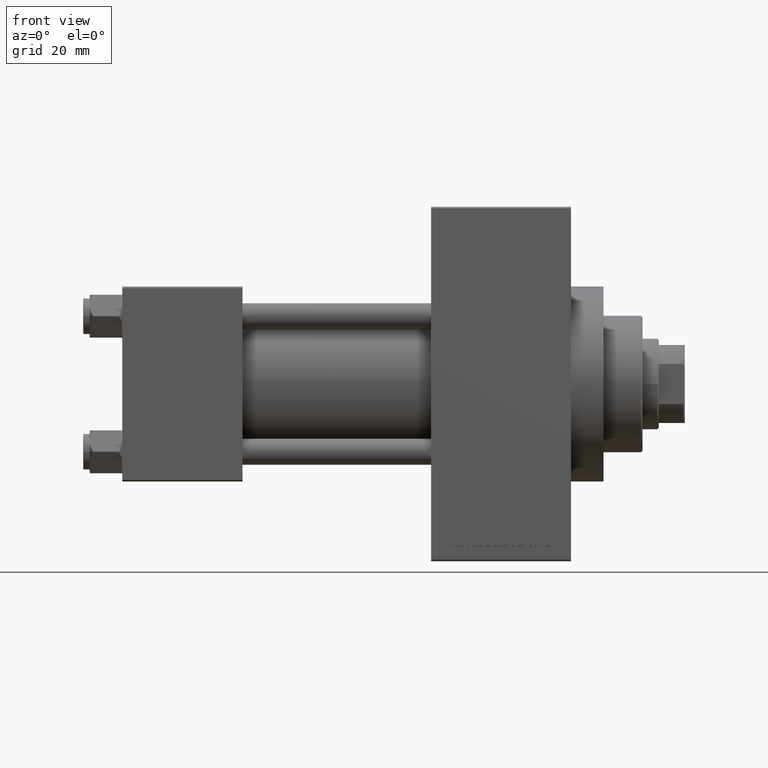
[diagram: clean part render]
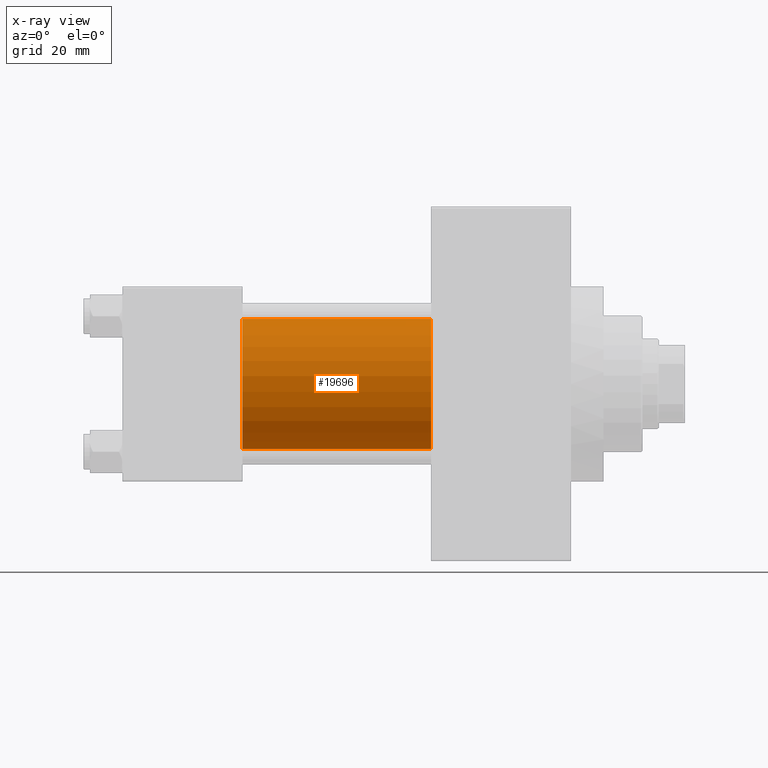
[diagram: x-ray — body ghosted, one internal face saturated and labeled with its STEP entity id]
A machine part, front view, then the same camera in x-ray: the body is ghosted and one INTERNAL B-rep face — a face not visible from any outside direction — is saturated and labeled: STEP entity #19696.
In plain terms, the highlighted cylindrical surface (partial cylindrical patch) has radius 20 mm, axis along (-1, -0, -0).
Its self-contained STEP definition (entity closure, byte-faithful):
#1172 = EDGE_CURVE ( 'NONE', #7580, #10793, #26314, .T. ) ;
#4609 = CARTESIAN_POINT ( 'NONE',  ( 95.00000000000000000, -2.602085213965210642E-15, 0.000000000000000000 ) ) ;
#5292 = DIRECTION ( 'NONE',  ( -1.000000000000000000, -0.000000000000000000, -0.000000000000000000 ) ) ;
#7580 = VERTEX_POINT ( 'NONE', #24898 ) ;
#7973 = DIRECTION ( 'NONE',  ( -1.000000000000000000, -0.000000000000000000, -0.000000000000000000 ) ) ;
#8083 = CYLINDRICAL_SURFACE ( 'NONE', #45110, 20.00000000000000000 ) ;
#9213 = CARTESIAN_POINT ( 'NONE',  ( 37.00000000000000000, -2.602085213965210642E-15, 20.00000000000000000 ) ) ;
#10793 = VERTEX_POINT ( 'NONE', #9213 ) ;
#11514 = EDGE_CURVE ( 'NONE', #7580, #13968, #26697, .T. ) ;
#11887 = CIRCLE ( 'NONE', #28495, 20.00000000000000000 ) ;
#12326 = CARTESIAN_POINT ( 'NONE',  ( 95.00000000000000000, -2.602085213965210642E-15, 0.000000000000000000 ) ) ;
#13614 = ORIENTED_EDGE ( 'NONE', *, *, #46126, .T. ) ;
#13968 = VERTEX_POINT ( 'NONE', #17837 ) ;
#14272 = ORIENTED_EDGE ( 'NONE', *, *, #18472, .F. ) ;
#14787 = CARTESIAN_POINT ( 'NONE',  ( 37.00000000000000000, -1.527916156705046464E-16, -20.00000000000000000 ) ) ;
#16040 = DIRECTION ( 'NONE',  ( 1.000000000000000000, 0.000000000000000000, 0.000000000000000000 ) ) ;
#16429 = LINE ( 'NONE', #16924, #27073 ) ;
#16924 = CARTESIAN_POINT ( 'NONE',  ( 95.00000000000000000, -1.527916156705046464E-16, -20.00000000000000000 ) ) ;
#17837 = CARTESIAN_POINT ( 'NONE',  ( 95.00000000000000000, -1.527916156705046464E-16, -20.00000000000000000 ) ) ;
#18472 = EDGE_CURVE ( 'NONE', #10793, #32221, #11887, .T. ) ;
#19158 = CARTESIAN_POINT ( 'NONE',  ( 37.00000000000000000, -2.602085213965210642E-15, 0.000000000000000000 ) ) ;
#19696 = ADVANCED_FACE ( 'NONE', ( #23429 ), #8083, .F. ) ;
#19711 = DIRECTION ( 'NONE',  ( -1.000000000000000000, -0.000000000000000000, -0.000000000000000000 ) ) ;
#22399 = DIRECTION ( 'NONE',  ( 0.000000000000000000, 0.000000000000000000, -1.000000000000000000 ) ) ;
#23083 = CARTESIAN_POINT ( 'NONE',  ( 95.00000000000000000, -2.602085213965210642E-15, 20.00000000000000000 ) ) ;
#23429 = FACE_OUTER_BOUND ( 'NONE', #35265, .T. ) ;
#24898 = CARTESIAN_POINT ( 'NONE',  ( 95.00000000000000000, -2.602085213965210642E-15, 20.00000000000000000 ) ) ;
#26314 = LINE ( 'NONE', #23083, #42135 ) ;
#26697 = CIRCLE ( 'NONE', #32193, 20.00000000000000000 ) ;
#27073 = VECTOR ( 'NONE', #5292, 1000.000000000000000 ) ;
#27234 = ORIENTED_EDGE ( 'NONE', *, *, #11514, .T. ) ;
#28495 = AXIS2_PLACEMENT_3D ( 'NONE', #19158, #45632, #22399 ) ;
#30375 = DIRECTION ( 'NONE',  ( 0.000000000000000000, 0.000000000000000000, 1.000000000000000000 ) ) ;
#32193 = AXIS2_PLACEMENT_3D ( 'NONE', #12326, #16040, #48975 ) ;
#32221 = VERTEX_POINT ( 'NONE', #14787 ) ;
#34479 = ORIENTED_EDGE ( 'NONE', *, *, #1172, .F. ) ;
#35265 = EDGE_LOOP ( 'NONE', ( #27234, #13614, #14272, #34479 ) ) ;
#42135 = VECTOR ( 'NONE', #7973, 1000.000000000000000 ) ;
#45110 = AXIS2_PLACEMENT_3D ( 'NONE', #4609, #19711, #30375 ) ;
#45632 = DIRECTION ( 'NONE',  ( 1.000000000000000000, 0.000000000000000000, 0.000000000000000000 ) ) ;
#46126 = EDGE_CURVE ( 'NONE', #13968, #32221, #16429, .T. ) ;
#48975 = DIRECTION ( 'NONE',  ( 0.000000000000000000, 0.000000000000000000, -1.000000000000000000 ) ) ;